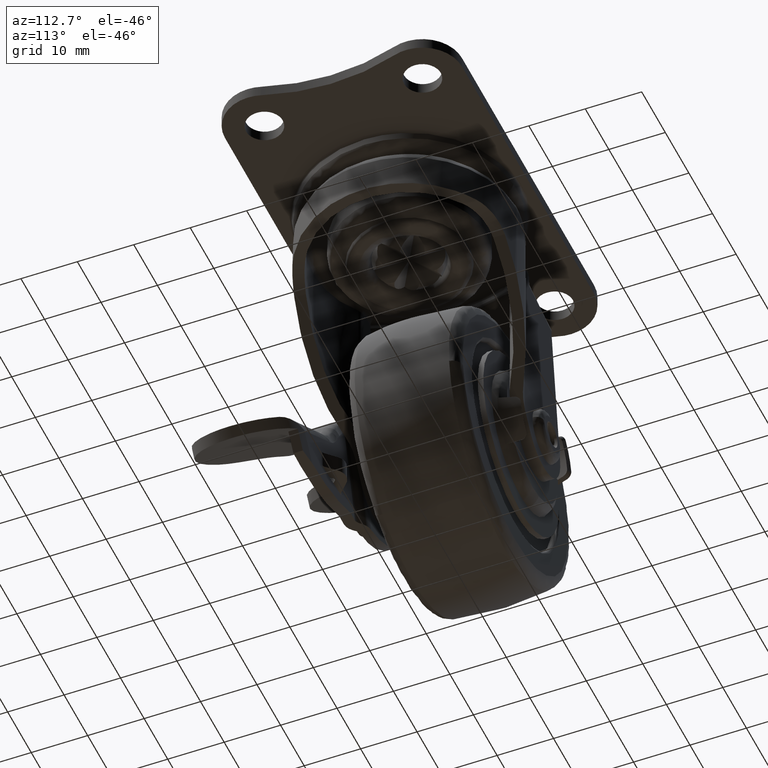
[diagram: clean part render]
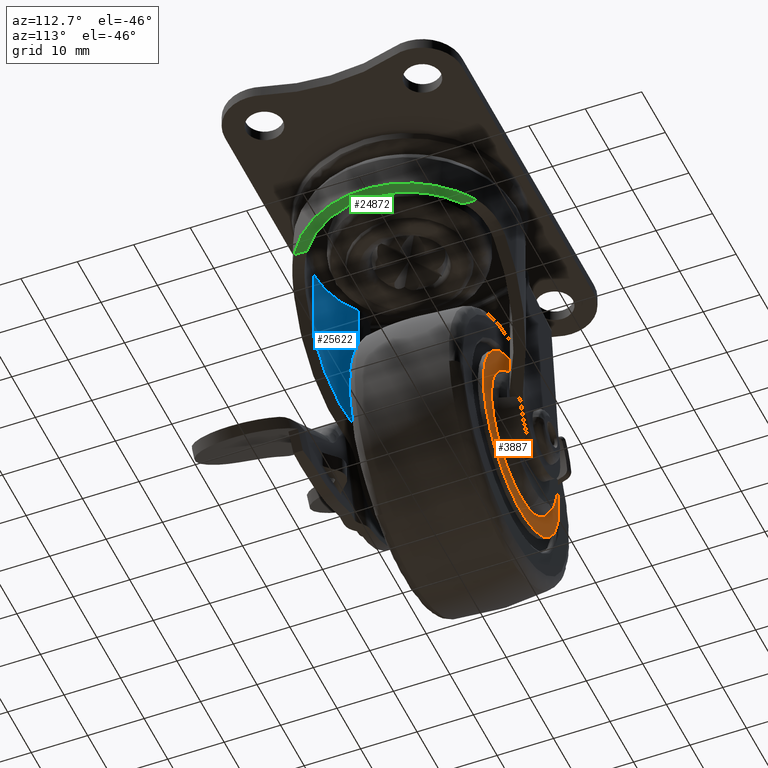
[diagram: same view with three faces highlighted in distinct colors, each labeled with its STEP entity id]
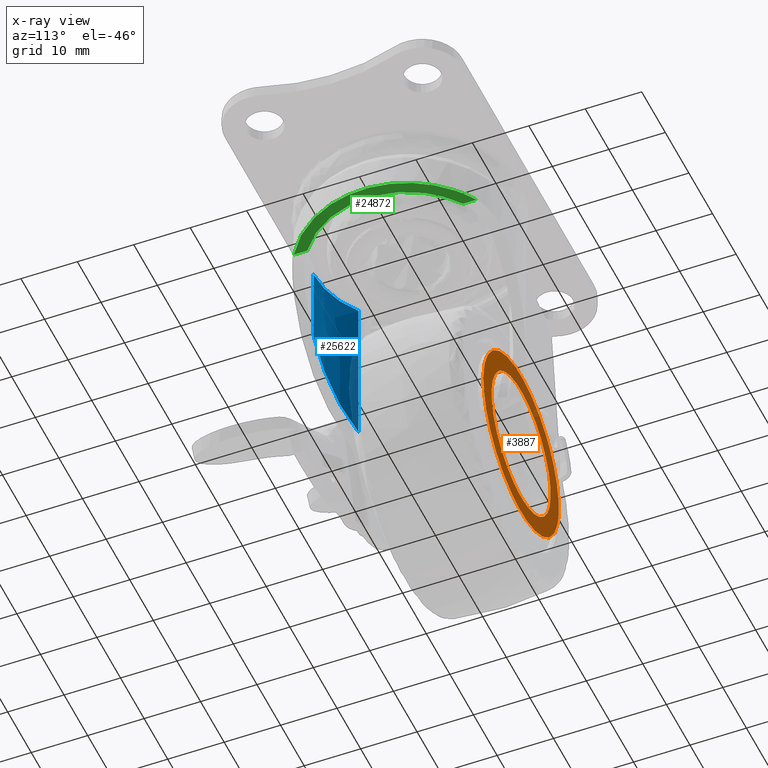
[diagram: x-ray of the same camera — body ghosted, the three highlighted faces saturated]
A machine part, auxiliary view with three faces highlighted in distinct colors.
The next image is the same camera in x-ray (body ghosted, the three faces saturated) — at least one of them is partly hidden behind the body in this view.
Their STEP definitions:

[orange] entity #3887 — the highlighted face is a freeform B-spline surface patch.
#70=CARTESIAN_POINT('',(-12.216890651235060,10.989464000049500,-10.331872913507841));
#71=VERTEX_POINT('',#70);
#72=CARTESIAN_POINT('',(0.0,10.989464000000000,-16.0));
#73=VERTEX_POINT('',#72);
#74=CARTESIAN_POINT('',(-12.216890651235060,10.989464000049500,-10.331872913507841));
#75=CARTESIAN_POINT('',(-11.515734871699520,10.989464000046651,-11.161215002676959));
#76=CARTESIAN_POINT('',(-10.153164133331479,10.989464000041110,-12.474106562611960));
#77=CARTESIAN_POINT('',(-7.801197275908568,10.989464000031630,-14.050676639719340));
#78=CARTESIAN_POINT('',(-5.420240240405283,10.989464000021970,-15.135794673111420));
#79=CARTESIAN_POINT('',(-2.751181248899069,10.989464000011219,-15.839830432148450));
#80=CARTESIAN_POINT('',(-0.941206581605121,10.989464000003780,-16.000077120789960));
#81=CARTESIAN_POINT('',(0.0,10.989464000000000,-16.0));
#82=B_SPLINE_CURVE_WITH_KNOTS('',3,(#74,#75,#76,#77,#78,#79,#80,#81),.UNSPECIFIED.,.F.,.U.,(4,1,1,1,1,4),(0.000000028129561,3.258010838864164,5.647224127225833,8.470825120314469,11.077243032175531,13.900852859466760),.UNSPECIFIED.);
#83=EDGE_CURVE('',#71,#73,#82,.T.);
#85=CARTESIAN_POINT('',(15.999999999999890,10.989464000000000,0.000001912180676));
#86=VERTEX_POINT('',#85);
#87=CARTESIAN_POINT('',(0.0,10.989464000000000,-16.0));
#88=CARTESIAN_POINT('',(1.079934603402075,10.989464000000011,-16.000144752079841));
#89=CARTESIAN_POINT('',(2.683378130952784,10.989464000000000,-15.837008999443160));
#90=CARTESIAN_POINT('',(5.063369044035936,10.989464000000019,-15.225301551770750));
#91=CARTESIAN_POINT('',(7.075208838251524,10.989463999999980,-14.420785265774800));
#92=CARTESIAN_POINT('',(8.939572710382761,10.989464000000060,-13.318765780844039));
#93=CARTESIAN_POINT('',(10.626489980684950,10.989463999999931,-12.018835039419759));
#94=CARTESIAN_POINT('',(12.325969168233460,10.989464000000110,-10.329949061841640));
#95=CARTESIAN_POINT('',(14.011178512661781,10.989463999999950,-7.937248061025343));
#96=CARTESIAN_POINT('',(15.090460358319680,10.989463999999950,-5.502173649270383));
#97=CARTESIAN_POINT('',(15.816439352067929,10.989464000000179,-2.846979581022802));
#98=CARTESIAN_POINT('',(16.000214688340549,10.989463999999650,-1.145383700373827));
#99=CARTESIAN_POINT('',(15.999999999999890,10.989464000000000,0.000001912180676));
#100=B_SPLINE_CURVE_WITH_KNOTS('',3,(#87,#88,#89,#90,#91,#92,#93,#94,#95,#96,#97,#98,#99),.UNSPECIFIED.,.F.,.U.,(4,1,1,1,1,1,1,1,1,1,4),(0.000000082540613,3.239762417096340,4.810559690380270,7.363121349320945,9.719347659116124,11.290119667872490,13.744448441230960,16.886078769914509,20.027694090440800,21.696684258024369,25.132781732436509),.UNSPECIFIED.);
#101=EDGE_CURVE('',#73,#86,#100,.T.);
#103=CARTESIAN_POINT('',(0.0,10.989464000000000,16.0));
#104=VERTEX_POINT('',#103);
#105=CARTESIAN_POINT('',(15.999999999999890,10.989464000000000,0.000001912180676));
#106=CARTESIAN_POINT('',(16.000059410775972,10.989464000000000,0.883576720752965));
#107=CARTESIAN_POINT('',(15.853272055834021,10.989463999999980,2.650707414867023));
#108=CARTESIAN_POINT('',(15.223313693202950,10.989464000000000,5.133345694509050));
#109=CARTESIAN_POINT('',(14.240734629194529,10.989464000000000,7.425477977975577));
#110=CARTESIAN_POINT('',(12.891090365031950,10.989464000000000,9.600875482251691));
#111=CARTESIAN_POINT('',(10.982658585030920,10.989463999999989,11.772749432721239));
#112=CARTESIAN_POINT('',(8.689099881845067,10.989464000000000,13.540042036252430));
#113=CARTESIAN_POINT('',(5.916984673439964,10.989464000000160,14.967600378463130));
#114=CARTESIAN_POINT('',(3.076156146641901,10.989463999999501,15.810332218735800));
#115=CARTESIAN_POINT('',(0.949009846461168,10.989464000000419,16.000063578430510));
#116=CARTESIAN_POINT('',(0.0,10.989464000000000,16.0));
#117=B_SPLINE_CURVE_WITH_KNOTS('',3,(#105,#106,#107,#108,#109,#110,#111,#112,#113,#114,#115,#116),.UNSPECIFIED.,.F.,.U.,(4,1,1,1,1,1,1,1,1,4),(0.000000082758575,2.650720574102461,5.301445285645098,7.657656256961062,10.112046977275270,12.959065477544630,16.297033338645608,18.751409677312289,22.285733990443259,25.132779576959649),.UNSPECIFIED.);
#118=EDGE_CURVE('',#86,#104,#117,.T.);
#120=CARTESIAN_POINT('',(-11.013672892962560,10.989463999996479,11.605989579968821));
#121=VERTEX_POINT('',#120);
#122=CARTESIAN_POINT('',(0.0,10.989464000000000,16.0));
#123=CARTESIAN_POINT('',(-1.202117215845063,10.989463999999630,16.000250985237930));
#124=CARTESIAN_POINT('',(-3.289857537281709,10.989463999998900,15.763544594626561));
#125=CARTESIAN_POINT('',(-6.011929848859883,10.989463999998151,14.896256348758721));
#126=CARTESIAN_POINT('',(-8.566166335091440,10.989463999997140,13.622317714218010));
#127=CARTESIAN_POINT('',(-10.141865214029311,10.989463999996850,12.433669055133921));
#128=CARTESIAN_POINT('',(-11.013672892962560,10.989463999996479,11.605989579968821));
#129=B_SPLINE_CURVE_WITH_KNOTS('',3,(#122,#123,#124,#125,#126,#127,#128),.UNSPECIFIED.,.F.,.U.,(4,1,1,1,4),(5.662518E-009,3.606307839989286,6.263586453024975,8.541254816647649,12.147562650968590),.UNSPECIFIED.);
#130=EDGE_CURVE('',#104,#121,#129,.T.);
#220=CARTESIAN_POINT('',(-15.999999999999890,10.989464000000000,-0.000001912180180));
#221=VERTEX_POINT('',#220);
#222=CARTESIAN_POINT('',(-15.999999999999890,10.989464000000000,-0.000001912180180));
#223=CARTESIAN_POINT('',(-16.000059481301989,10.989464000004210,-0.877497047135791));
#224=CARTESIAN_POINT('',(-15.850466549330800,10.989464000012889,-2.690973784227939));
#225=CARTESIAN_POINT('',(-15.220179280360810,10.989464000024631,-5.136212830641504));
#226=CARTESIAN_POINT('',(-14.086038343784979,10.989464000037231,-7.775580010118910));
#227=CARTESIAN_POINT('',(-13.010400499340699,10.989464000045020,-9.393996029199423));
#228=CARTESIAN_POINT('',(-12.216890651235060,10.989464000049500,-10.331872913507841));
#229=B_SPLINE_CURVE_WITH_KNOTS('',3,(#222,#223,#224,#225,#226,#227,#228),.UNSPECIFIED.,.F.,.U.,(4,1,1,1,4),(9.716441E-009,2.632492674698776,5.440490395749185,7.546473268586764,11.231969813688851),.UNSPECIFIED.);
#230=EDGE_CURVE('',#221,#71,#229,.T.);
#257=CARTESIAN_POINT('',(-11.013672892962560,10.989463999996479,11.605989579968821));
#258=CARTESIAN_POINT('',(-11.896909393278170,10.989463999996740,10.768175198540821));
#259=CARTESIAN_POINT('',(-13.383108638907190,10.989463999997280,8.993932576178754));
#260=CARTESIAN_POINT('',(-14.863841393990210,10.989463999998090,6.162695443287323));
#261=CARTESIAN_POINT('',(-15.780321710309099,10.989463999999041,3.178613775467909));
#262=CARTESIAN_POINT('',(-16.000197382875790,10.989463999999691,1.149747506927736));
#263=CARTESIAN_POINT('',(-15.999999999999890,10.989464000000000,-0.000001912180180));
#264=B_SPLINE_CURVE_WITH_KNOTS('',3,(#257,#258,#259,#260,#261,#262,#263),.UNSPECIFIED.,.F.,.U.,(4,1,1,1,4),(0.000000024145461,3.652109783822965,6.898414620182719,9.536059408376216,12.985273089568940),.UNSPECIFIED.);
#265=EDGE_CURVE('',#121,#221,#264,.T.);
#1425=CARTESIAN_POINT('',(-6.103737126768397,10.989464000102300,-10.908455335698029));
#1426=VERTEX_POINT('',#1425);
#1427=CARTESIAN_POINT('',(0.0,10.989464000000000,-12.500000188964000));
#1428=VERTEX_POINT('',#1427);
#1429=CARTESIAN_POINT('',(-6.103737126768397,10.989464000102300,-10.908455335698029));
#1430=CARTESIAN_POINT('',(-5.118465558581486,10.989464000066841,-11.460218517261399));
#1431=CARTESIAN_POINT('',(-3.121844930155398,10.989464000016421,-12.244475507851419));
#1432=CARTESIAN_POINT('',(-0.996386477947349,10.989463999999980,-12.500199819046911));
#1433=CARTESIAN_POINT('',(0.0,10.989464000000000,-12.500000188964000));
#1434=B_SPLINE_CURVE_WITH_KNOTS('',3,(#1429,#1430,#1431,#1432,#1433),.UNSPECIFIED.,.F.,.U.,(4,1,4),(0.000000011558268,3.387644513295901,6.376760337232006),.UNSPECIFIED.);
#1435=EDGE_CURVE('',#1426,#1428,#1434,.T.);
#1558=CARTESIAN_POINT('',(-12.307054367645470,10.989463999998410,-2.187788270360367));
#1559=VERTEX_POINT('',#1558);
#1569=CARTESIAN_POINT('',(0.0,10.989464000000000,12.500000188964000));
#1570=VERTEX_POINT('',#1569);
#1571=CARTESIAN_POINT('',(0.0,10.989464000000000,12.500000188964000));
#1572=CARTESIAN_POINT('',(-0.739163631643203,10.989464000000080,12.500054831765620));
#1573=CARTESIAN_POINT('',(-2.359664195374609,10.989464000000149,12.355916964271699));
#1574=CARTESIAN_POINT('',(-4.555708823791878,10.989464000000259,11.716976813655689));
#1575=CARTESIAN_POINT('',(-6.465106263296477,10.989464000000220,10.753187027677630));
#1576=CARTESIAN_POINT('',(-7.929181947662013,10.989464000000140,9.713489005503417));
#1577=CARTESIAN_POINT('',(-9.133721525101377,10.989464000000110,8.582369573711587));
#1578=CARTESIAN_POINT('',(-10.403930266739870,10.989463999999650,7.045490821154399));
#1579=CARTESIAN_POINT('',(-11.477986270037810,10.989463999999760,5.154936386569261));
#1580=CARTESIAN_POINT('',(-12.148407747024210,10.989463999999270,3.122622554353840));
#1581=CARTESIAN_POINT('',(-12.571182965014451,10.989463999999220,0.739180164554472));
#1582=CARTESIAN_POINT('',(-12.521536982358500,10.989463999998261,-0.984199890859453));
#1583=CARTESIAN_POINT('',(-12.307054367645470,10.989463999998410,-2.187788270360367));
#1584=B_SPLINE_CURVE_WITH_KNOTS('',3,(#1571,#1572,#1573,#1574,#1575,#1576,#1577,#1578,#1579,#1580,#1581,#1582,#1583),.UNSPECIFIED.,.F.,.U.,(4,1,1,1,1,1,1,1,1,1,4),(0.000000112237402,2.217496423309516,4.861499294543719,6.823165454193113,8.614265402535329,10.234779464579921,11.769910588550671,14.584486459397841,16.716742332272421,18.166681033976239,21.834111625744200),.UNSPECIFIED.);
#1585=EDGE_CURVE('',#1570,#1559,#1584,.T.);
#1587=CARTESIAN_POINT('',(12.500000188963950,10.989464000000000,0.000001054395552));
#1588=VERTEX_POINT('',#1587);
#1589=CARTESIAN_POINT('',(12.500000188963950,10.989464000000000,0.000001054395552));
#1590=CARTESIAN_POINT('',(12.500040149193900,10.989463999999989,0.664725942865989));
#1591=CARTESIAN_POINT('',(12.397778233873240,10.989464000000000,1.943020983703890));
#1592=CARTESIAN_POINT('',(11.900354237780210,10.989464000000019,4.038221247597255));
#1593=CARTESIAN_POINT('',(11.078490307081321,10.989463999999920,5.923284120698651));
#1594=CARTESIAN_POINT('',(9.837223037244831,10.989464000000179,7.805905958595445));
#1595=CARTESIAN_POINT('',(8.543374985190461,10.989463999999669,9.198672448763436));
#1596=CARTESIAN_POINT('',(6.927894896672147,10.989464000000220,10.459343117356701));
#1597=CARTESIAN_POINT('',(5.052470343638575,10.989463999999890,11.521957617855490));
#1598=CARTESIAN_POINT('',(2.658875472844281,10.989464000000030,12.312646052064810));
#1599=CARTESIAN_POINT('',(0.869254227310018,10.989464000000011,12.500106785285380));
#1600=CARTESIAN_POINT('',(0.0,10.989464000000000,12.500000188964000));
#1601=B_SPLINE_CURVE_WITH_KNOTS('',3,(#1589,#1590,#1591,#1592,#1593,#1594,#1595,#1596,#1597,#1598,#1599,#1600),.UNSPECIFIED.,.F.,.U.,(4,1,1,1,1,1,1,1,1,4),(0.000000043888353,1.994180891061404,3.834975349678684,6.442777206888753,8.130180316922195,10.584495716129281,12.118520694714210,14.266106596489470,17.027309696049539,19.635076988486709),.UNSPECIFIED.);
#1602=EDGE_CURVE('',#1588,#1570,#1601,.T.);
#1604=CARTESIAN_POINT('',(0.0,10.989464000000000,-12.500000188964000));
#1605=CARTESIAN_POINT('',(0.869248259274749,10.989463999999989,-12.500107400815590));
#1606=CARTESIAN_POINT('',(2.710024352143294,10.989464000000011,-12.307326323763419));
#1607=CARTESIAN_POINT('',(5.149140126947772,10.989464000000011,-11.484957798157120));
#1608=CARTESIAN_POINT('',(7.188764161491402,10.989463999999980,-10.296034079418900));
#1609=CARTESIAN_POINT('',(8.648440763036332,10.989464000000080,-9.083013327160867));
#1610=CARTESIAN_POINT('',(9.921374959210597,10.989463999999961,-7.678566474646059));
#1611=CARTESIAN_POINT('',(10.890818797448720,10.989463999999961,-6.227730325708637));
#1612=CARTESIAN_POINT('',(11.635467410185750,10.989464000000000,-4.653119582233929));
#1613=CARTESIAN_POINT('',(12.294484913165160,10.989463999999950,-2.658762134468828));
#1614=CARTESIAN_POINT('',(12.500295856778980,10.989464000000110,-1.073815020041662));
#1615=CARTESIAN_POINT('',(12.500000188963950,10.989464000000000,0.000001054395552));
#1616=B_SPLINE_CURVE_WITH_KNOTS('',3,(#1604,#1605,#1606,#1607,#1608,#1609,#1610,#1611,#1612,#1613,#1614,#1615),.UNSPECIFIED.,.F.,.U.,(4,1,1,1,1,1,1,1,1,4),(0.000000043518110,2.607760198205597,5.522367227323203,7.669964192640036,9.664150061408417,11.198092271003810,13.345704022956220,14.879709517190779,16.413717406728910,19.635078177043759),.UNSPECIFIED.);
#1617=EDGE_CURVE('',#1428,#1588,#1616,.T.);
#1639=CARTESIAN_POINT('',(-12.307054367645470,10.989463999998410,-2.187788270360367));
#1640=CARTESIAN_POINT('',(-12.130898700090480,10.989463999998669,-3.180301066230042));
#1641=CARTESIAN_POINT('',(-11.706147923244441,10.989464000002890,-4.567223195373977));
#1642=CARTESIAN_POINT('',(-10.766326231743760,10.989464000016820,-6.418734277142749));
#1643=CARTESIAN_POINT('',(-9.921319842839516,10.989464000030610,-7.660378008685133));
#1644=CARTESIAN_POINT('',(-8.428993332630965,10.989464000057410,-9.343495583038127));
#1645=CARTESIAN_POINT('',(-7.134507347945986,10.989464000081810,-10.332295393892499));
#1646=CARTESIAN_POINT('',(-6.103737126768397,10.989464000102300,-10.908455335698029));
#1647=B_SPLINE_CURVE_WITH_KNOTS('',3,(#1639,#1640,#1641,#1642,#1643,#1644,#1645,#1646),.UNSPECIFIED.,.F.,.U.,(4,1,1,1,1,4),(0.000000030826254,3.023978177822275,4.319980767976300,6.220742429394037,7.516740260904687,11.059118048594710),.UNSPECIFIED.);
#1648=EDGE_CURVE('',#1559,#1426,#1647,.T.);
#3867=CARTESIAN_POINT('',(-17.598399937977661,10.989464000000000,17.598399937977788));
#3868=CARTESIAN_POINT('',(-17.598399937977661,10.989464000000000,-17.598400796284679));
#3869=CARTESIAN_POINT('',(17.598400796284551,10.989464000000000,17.598399937977788));
#3870=CARTESIAN_POINT('',(17.598400796284551,10.989464000000000,-17.598400796284679));
#3871=B_SPLINE_SURFACE_WITH_KNOTS('',1,1,((#3867,#3869),(#3868,#3870)),.UNSPECIFIED.,.F.,.F.,.U.,(2,2),(2,2),(0.0,35.196800734262467),(0.0,35.196800734262212),.UNSPECIFIED.);
#3872=ORIENTED_EDGE('',*,*,#83,.F.);
#3873=ORIENTED_EDGE('',*,*,#230,.F.);
#3874=ORIENTED_EDGE('',*,*,#265,.F.);
#3875=ORIENTED_EDGE('',*,*,#130,.F.);
#3876=ORIENTED_EDGE('',*,*,#118,.F.);
#3877=ORIENTED_EDGE('',*,*,#101,.F.);
#3878=EDGE_LOOP('',(#3872,#3873,#3874,#3875,#3876,#3877));
#3879=FACE_OUTER_BOUND('',#3878,.T.);
#3880=ORIENTED_EDGE('',*,*,#1585,.T.);
#3881=ORIENTED_EDGE('',*,*,#1648,.T.);
#3882=ORIENTED_EDGE('',*,*,#1435,.T.);
#3883=ORIENTED_EDGE('',*,*,#1617,.T.);
#3884=ORIENTED_EDGE('',*,*,#1602,.T.);
#3885=EDGE_LOOP('',(#3880,#3881,#3882,#3883,#3884));
#3886=FACE_BOUND('',#3885,.T.);
#3887=ADVANCED_FACE('',(#3879,#3886),#3871,.F.);

[blue] entity #25622 — the highlighted face is a freeform B-spline surface patch.
#21971=CARTESIAN_POINT('',(21.0,-17.0,30.959998999999900));
#21972=VERTEX_POINT('',#21971);
#22088=CARTESIAN_POINT('',(10.565647767613200,-13.421039210526301,30.959998999999900));
#22089=VERTEX_POINT('',#22088);
#22114=CARTESIAN_POINT('',(10.565647767613200,-13.421039210526301,30.959998999999900));
#22115=CARTESIAN_POINT('',(11.627944435153790,-14.247344555682680,30.959998999999911));
#22116=CARTESIAN_POINT('',(13.293911804268269,-15.250138138068280,30.959998999999989));
#22117=CARTESIAN_POINT('',(15.968806113251270,-16.292918216301040,30.959998999999851));
#22118=CARTESIAN_POINT('',(18.308431437162842,-16.859237580891840,30.959999000000071));
#22119=CARTESIAN_POINT('',(20.122311762791149,-17.000049660030509,30.959998999999780));
#22120=CARTESIAN_POINT('',(21.0,-17.0,30.959998999999900));
#22121=B_SPLINE_CURVE_WITH_KNOTS('',3,(#22114,#22115,#22116,#22117,#22118,#22119,#22120),.UNSPECIFIED.,.F.,.U.,(4,1,1,1,4),(0.000000010658432,4.037382944399503,5.792751952028708,8.601370987065817,11.234441802122760),.UNSPECIFIED.);
#22122=EDGE_CURVE('',#22089,#21972,#22121,.T.);
#22356=CARTESIAN_POINT('',(10.565647767613200,-13.421039210526301,2.408528862296470));
#22357=VERTEX_POINT('',#22356);
#22358=CARTESIAN_POINT('',(10.565647767613200,-13.421039210526301,2.408528862296470));
#22359=CARTESIAN_POINT('',(10.565647767613200,-13.421039210526301,30.959998999999900));
#22360=QUASI_UNIFORM_CURVE('',1,(#22358,#22359),.UNSPECIFIED.,.F.,.U.);
#22361=EDGE_CURVE('',#22357,#22089,#22360,.T.);
#25034=CARTESIAN_POINT('',(21.0,-17.0,16.505699334126600));
#25035=VERTEX_POINT('',#25034);
#25036=CARTESIAN_POINT('',(10.565647767613219,-13.421039210526320,2.408528862296457));
#25037=CARTESIAN_POINT('',(15.169035885887928,-17.0,8.627865300824244));
#25038=CARTESIAN_POINT('',(21.0,-17.0,16.505699334126600));
#25046=(BOUNDED_CURVE()B_SPLINE_CURVE(2,(#25036,#25037,#25038),.UNSPECIFIED.,.F.,.U.)CURVE()GEOMETRIC_REPRESENTATION_ITEM()QUASI_UNIFORM_CURVE()RATIONAL_B_SPLINE_CURVE((1.0,0.945905094271318,1.0))REPRESENTATION_ITEM(''));
#25047=EDGE_CURVE('',#22357,#25035,#25046,.T.);
#25570=CARTESIAN_POINT('',(21.0,-17.0,30.959998999999900));
#25571=CARTESIAN_POINT('',(21.0,-17.0,16.505699334126600));
#25572=QUASI_UNIFORM_CURVE('',1,(#25570,#25571),.UNSPECIFIED.,.F.,.U.);
#25573=EDGE_CURVE('',#21972,#25035,#25572,.T.);
#25602=CARTESIAN_POINT('',(10.448925900677850,-13.329472433319079,31.673785753442491));
#25603=CARTESIAN_POINT('',(10.448925900677850,-13.329472433319079,1.676897440017817));
#25604=CARTESIAN_POINT('',(15.329676632162061,-17.192878347230984,31.673785753442484));
#25605=CARTESIAN_POINT('',(15.329676632162061,-17.192878347230984,1.676897440017817));
#25606=CARTESIAN_POINT('',(21.551163872586823,-16.991062897463337,31.673785753442488));
#25607=CARTESIAN_POINT('',(21.551163872586823,-16.991062897463337,1.676897440017817));
#25615=(BOUNDED_SURFACE()B_SPLINE_SURFACE(1,2,((#25602,#25604,#25606),(#25603,#25605,#25607)),.UNSPECIFIED.,.F.,.F.,.U.)B_SPLINE_SURFACE_WITH_KNOTS((2,2),(3,3),(0.0,29.996888313424680),(0.0,12.058052968069640),.UNSPECIFIED.)GEOMETRIC_REPRESENTATION_ITEM()RATIONAL_B_SPLINE_SURFACE(((1.0,0.937898956316260,0.997593994980501),(1.0,0.937898956316260,0.997593994980501)))REPRESENTATION_ITEM('')SURFACE());
#25616=ORIENTED_EDGE('',*,*,#22361,.T.);
#25617=ORIENTED_EDGE('',*,*,#22122,.T.);
#25618=ORIENTED_EDGE('',*,*,#25573,.T.);
#25619=ORIENTED_EDGE('',*,*,#25047,.F.);
#25620=EDGE_LOOP('',(#25616,#25617,#25618,#25619));
#25621=FACE_OUTER_BOUND('',#25620,.T.);
#25622=ADVANCED_FACE('',(#25621),#25615,.F.);

[green] entity #24872 — the highlighted face is a freeform B-spline surface patch.
#24810=CARTESIAN_POINT('',(40.862800820904532,-17.813255616487719,25.746602756401831));
#24811=CARTESIAN_POINT('',(30.897489440752899,-17.813255616487719,25.398605400492261));
#24812=CARTESIAN_POINT('',(40.862800820904532,17.813255906082968,25.746602756401831));
#24813=CARTESIAN_POINT('',(30.897489440752899,17.813255906082968,25.398605400492261));
#24814=B_SPLINE_SURFACE_WITH_KNOTS('',1,1,((#24810,#24812),(#24811,#24813)),.UNSPECIFIED.,.F.,.F.,.U.,(2,2),(2,2),(0.0,9.971385714287639),(0.0,35.626511522570688),.UNSPECIFIED.);
#24815=CARTESIAN_POINT('',(31.350045213610649,-13.794529913570541,25.414409587770301));
#24816=VERTEX_POINT('',#24815);
#24817=CARTESIAN_POINT('',(31.350045213610649,-16.195340550182799,25.414409587770301));
#24818=VERTEX_POINT('',#24817);
#24819=CARTESIAN_POINT('',(31.350045213610649,-13.794529913570541,25.414409587770301));
#24820=CARTESIAN_POINT('',(31.350045213610649,-16.195340550182799,25.414409587770301));
#24821=QUASI_UNIFORM_CURVE('',1,(#24819,#24820),.UNSPECIFIED.,.F.,.U.);
#24822=EDGE_CURVE('',#24816,#24818,#24821,.T.);
#24823=ORIENTED_EDGE('',*,*,#24822,.F.);
#24824=CARTESIAN_POINT('',(31.350045213610649,13.794529913570541,25.414409587770301));
#24825=VERTEX_POINT('',#24824);
#24826=CARTESIAN_POINT('',(31.350045213610649,-13.794529913570541,25.414409587770301));
#24827=CARTESIAN_POINT('',(32.301829455653532,-13.108958507351611,25.447646649253119));
#24828=CARTESIAN_POINT('',(33.905257073130798,-11.679544750050020,25.503639614833421));
#24829=CARTESIAN_POINT('',(35.773465877621689,-9.243734882541579,25.568878949710950));
#24830=CARTESIAN_POINT('',(36.936160452438543,-7.052643467908686,25.609481167484031));
#24831=CARTESIAN_POINT('',(37.767108341720423,-4.809775294951599,25.638498527580211));
#24832=CARTESIAN_POINT('',(38.368692222082807,-2.187694132367295,25.659506314361060));
#24833=CARTESIAN_POINT('',(38.474900824655663,0.423424666789340,25.663215203096239));
#24834=CARTESIAN_POINT('',(38.205510783023307,2.841558969632040,25.653807888937639));
#24835=CARTESIAN_POINT('',(37.805842052994898,4.645382313551000,25.639851139533409));
#24836=CARTESIAN_POINT('',(37.071740569080390,6.745208920244214,25.614215732813101));
#24837=CARTESIAN_POINT('',(35.912020767419087,9.031765618127741,25.573717396479790));
#24838=CARTESIAN_POINT('',(34.028652062035000,11.564133653241690,25.507948665826330));
#24839=CARTESIAN_POINT('',(32.335825751615282,13.084482056000891,25.448833826902209));
#24840=CARTESIAN_POINT('',(31.350045213610649,13.794529913570541,25.414409587770301));
#24841=B_SPLINE_CURVE_WITH_KNOTS('',3,(#24826,#24827,#24828,#24829,#24830,#24831,#24832,#24833,#24834,#24835,#24836,#24837,#24838,#24839,#24840),.UNSPECIFIED.,.F.,.U.,(4,1,1,1,1,1,1,1,1,1,1,1,4),(0.000000127960668,3.520332517660624,6.412052837560903,9.178043488576382,10.938216215309000,13.578514243498059,17.224542602728430,18.733249675505970,20.870607590099912,22.756504860243560,25.396780604853149,28.539954937102820,32.186012636306238),.UNSPECIFIED.);
#24842=EDGE_CURVE('',#24816,#24825,#24841,.T.);
#24843=ORIENTED_EDGE('',*,*,#24842,.T.);
#24844=CARTESIAN_POINT('',(31.350045213610649,16.195340550182799,25.414409587770301));
#24845=VERTEX_POINT('',#24844);
#24846=CARTESIAN_POINT('',(31.350045213610649,16.195340550182799,25.414409587770301));
#24847=CARTESIAN_POINT('',(31.350045213610649,13.794529913570541,25.414409587770301));
#24848=QUASI_UNIFORM_CURVE('',1,(#24846,#24847),.UNSPECIFIED.,.F.,.U.);
#24849=EDGE_CURVE('',#24845,#24825,#24848,.T.);
#24850=ORIENTED_EDGE('',*,*,#24849,.F.);
#24851=CARTESIAN_POINT('',(31.350045213610649,-16.195340550182799,25.414409587770301));
#24852=CARTESIAN_POINT('',(32.640837095782132,-15.403594185779120,25.459485087227581));
#24853=CARTESIAN_POINT('',(34.592914917337900,-13.856027972378831,25.527653228041910));
#24854=CARTESIAN_POINT('',(36.890526157918117,-11.157647603887019,25.607887676103040));
#24855=CARTESIAN_POINT('',(38.284756307746498,-8.862686179892073,25.656575323763199));
#24856=CARTESIAN_POINT('',(39.273124511850568,-6.590947731318540,25.691089943093441));
#24857=CARTESIAN_POINT('',(40.092525296559899,-3.932138146195382,25.719704083092680));
#24858=CARTESIAN_POINT('',(40.491927534137353,-0.911134295636680,25.733651533174921));
#24859=CARTESIAN_POINT('',(40.322515703357197,2.628748601973666,25.727735534638139));
#24860=CARTESIAN_POINT('',(39.682728569298007,5.501623704598227,25.705393648999909));
#24861=CARTESIAN_POINT('',(38.691764743149861,7.992695831626540,25.670788388442769));
#24862=CARTESIAN_POINT('',(37.549455999480038,10.133816484666490,25.630898040613289));
#24863=CARTESIAN_POINT('',(36.251634154922890,11.945358736191450,25.585577049167721));
#24864=CARTESIAN_POINT('',(34.195597573351407,14.173615476310980,25.513778584134819));
#24865=CARTESIAN_POINT('',(32.597805493510393,15.429968796197100,25.457982388774241));
#24866=CARTESIAN_POINT('',(31.350045213610649,16.195340550182799,25.414409587770301));
#24867=B_SPLINE_CURVE_WITH_KNOTS('',3,(#24851,#24852,#24853,#24854,#24855,#24856,#24857,#24858,#24859,#24860,#24861,#24862,#24863,#24864,#24865,#24866),.UNSPECIFIED.,.F.,.U.,(4,1,1,1,1,1,1,1,1,1,1,1,1,4),(0.000000126361506,4.544710293500764,7.423049990931411,10.604365870690430,12.573741012284300,14.846117694942430,18.936409611138561,21.663135945686729,25.450456573796121,27.722820191558899,29.692207414025411,32.722022367866217,34.388430363441600,38.781652593666117),.UNSPECIFIED.);
#24868=EDGE_CURVE('',#24818,#24845,#24867,.T.);
#24869=ORIENTED_EDGE('',*,*,#24868,.F.);
#24870=EDGE_LOOP('',(#24823,#24843,#24850,#24869));
#24871=FACE_OUTER_BOUND('',#24870,.T.);
#24872=ADVANCED_FACE('',(#24871),#24814,.T.);